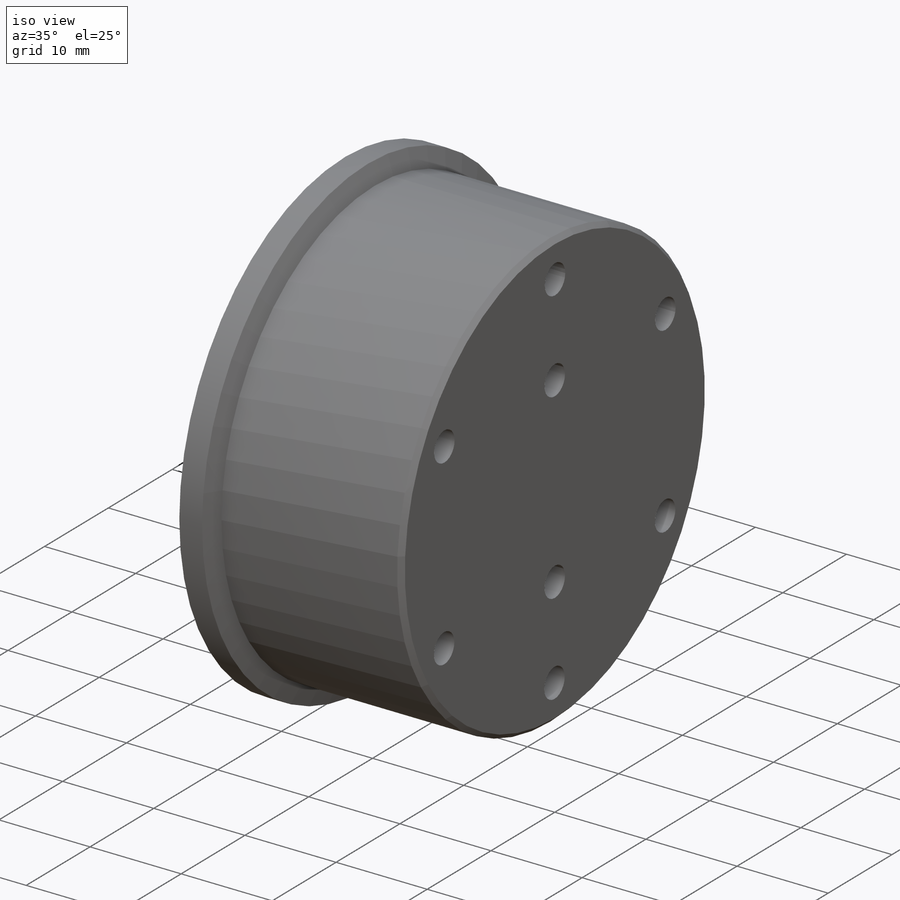
[diagram: iso view]
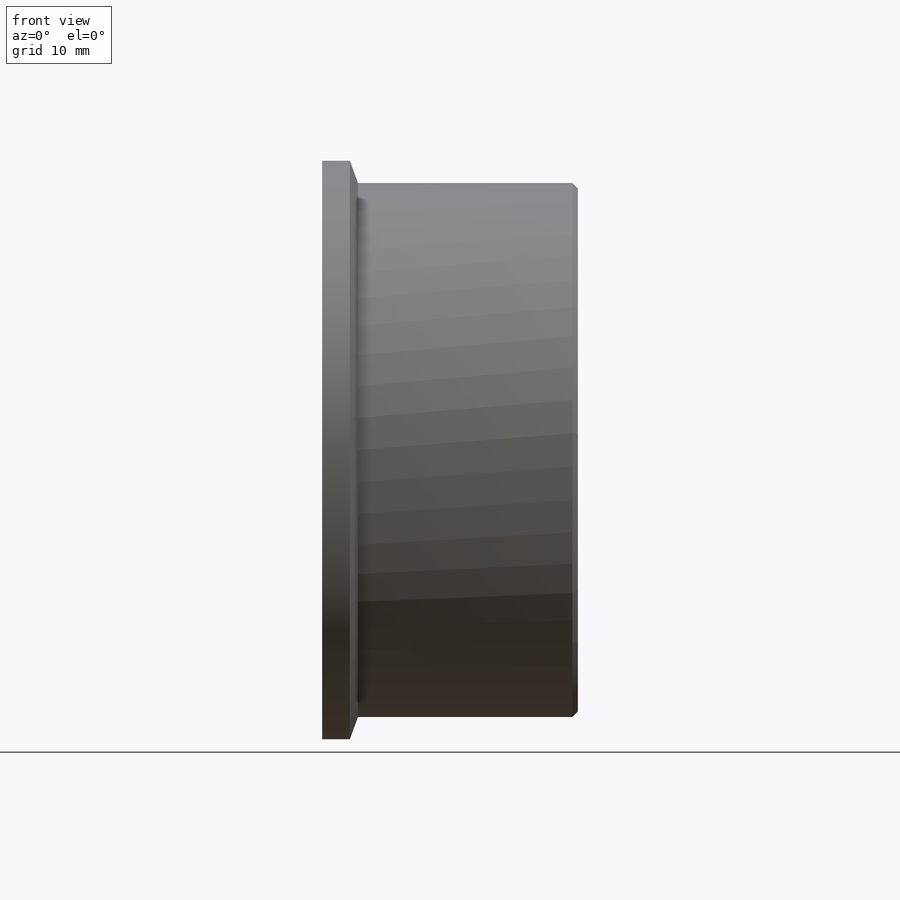
[diagram: front view]
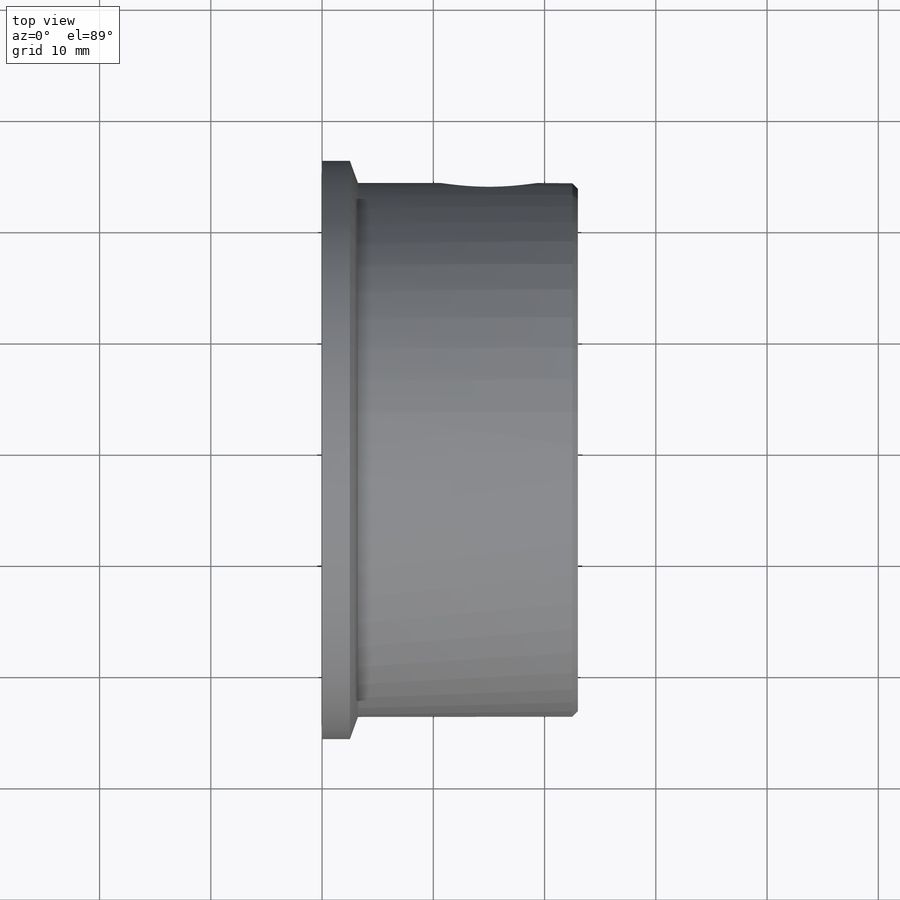
[diagram: top view]
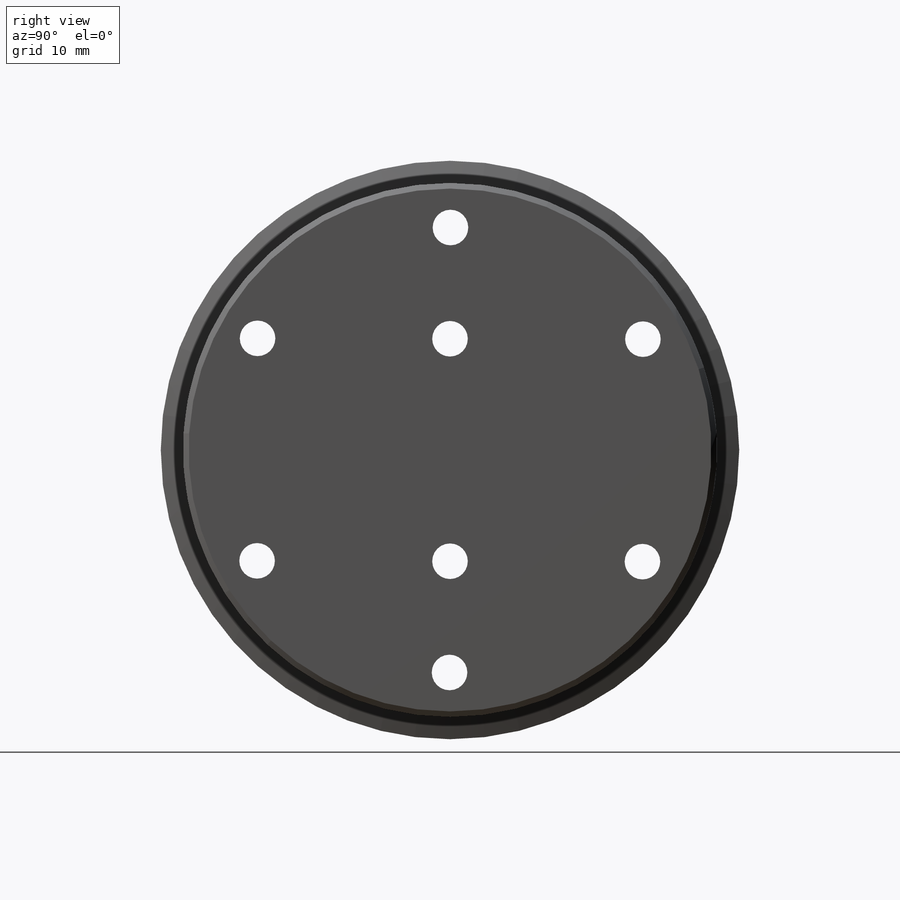
[diagram: right view]
SOLIDWORKS PART (.sldprt)
format: sldprt  version: not decoded by parser v0  size: 293,888 bytes
history: native  units: mm
features: sketch x6, cut_extrude x5, plane x4, pattern_circular x2, chamfer x2, material x1, revolve x1 (+10 scaffold rows collapsed)
feature tree (31):
  scaffold x10  (default folders/planes/origin — collapsed)
  material  "Matériau <non spécifié>"
  plane  "Plan de face"
  plane  "Plan de dessus"
  plane  "Plan de droite"
  sketch  "Esquisse1"  dims[c1.D1=26.0mm c1.D2=~2.166667mm c2.D2=110.0deg c2.D3=23.0mm c2.D4=2.5mm c2.D5=24.0mm c2.D6=23.0mm c2.D7=6.0mm c2.D8=3.0mm c2.D9=16.0mm c2.D10=6.0mm c2.D11=3.0mm c2.D12=3.5mm c2.D13=7.0mm c3.D13=60.0deg]
  revolve  "Révolution1"  Angle=360deg
  sketch  "Esquisse3D2"  dims[D2=3.2mm D1=10.0mm D3=20.0mm]
  cut_extrude  "Enlèv. mat.-Extru.2"  [1 undecoded]
  pattern_circular  "Répétition circulaire1"  Count=6 Angle=360deg
  sketch  "Esquisse2"  dims[c1.D1=~2.236068mm c1.D2=3.2mm c2.D1=10.0mm]
  cut_extrude  "Enlèv. mat.-Extru.3"  [1 undecoded]
  pattern_circular  "Répétition circulaire2"  Count=2 Angle=360deg
  plane  "Plan1"
  sketch  "Esquisse3"  dims[D1=4.0mm D2=15.0mm D3=0.0mm]
  cut_extrude  "Enlèv. mat.-Extru.5"  [1 undecoded]
  sketch  "Esquisse6"  dims[D1=8.8mm]
  cut_extrude  "Enlèv. mat.-Extru.6"  Depth=10mm
  chamfer  "Chanfrein1"  Distance=3mm Angle=45deg
  chamfer  "Chanfrein2"  Distance=0.5mm Angle=45deg
  sketch  "Esquisse10"
  cut_extrude  "Enlèv. mat.-Extru.7"  Depth=5mm
decode coverage: 12 of 16 modeling features carry decoded parameters
note: ~ marks probable driven/reference dimensions
note: 3 parameter values undecoded
summary: no parameter record found for 3 features
note: suppression state not decoded; provenance and decode notes live in map.json
